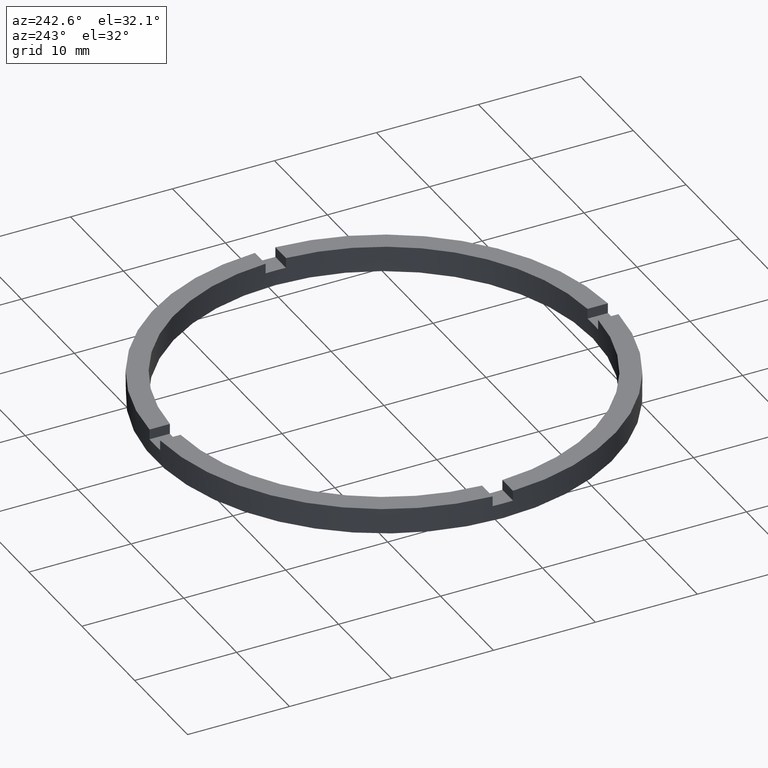
[diagram: clean part render]
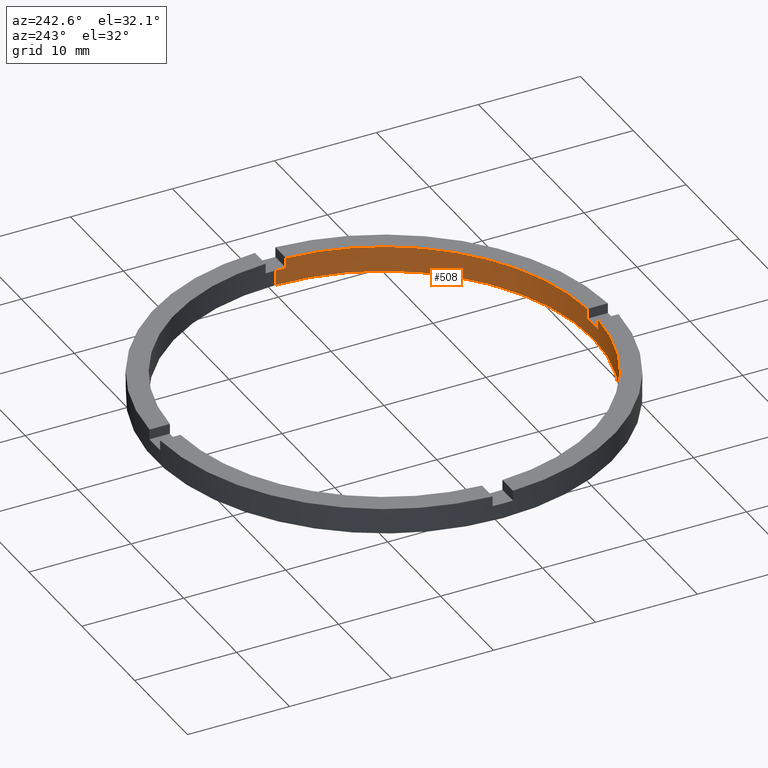
[diagram: same view with one face highlighted and labeled with its STEP entity id]
A machine part, auxiliary view. The second image highlights one B-rep face of the part: STEP entity #508.
In plain terms, the highlighted cylindrical surface (partial cylindrical patch) has radius 20.5 mm, axis along (-0, -0, -1).
Its self-contained STEP definition (entity closure, byte-faithful):
#14 = EDGE_CURVE ( 'NONE', #783, #241, #328, .T. ) ;
#17 = EDGE_LOOP ( 'NONE', ( #576, #514, #577, #518, #505, #561, #294, #511, #270, #752, #245, #510 ) ) ;
#18 = LINE ( 'NONE', #513, #306 ) ;
#25 = VERTEX_POINT ( 'NONE', #86 ) ;
#35 = EDGE_CURVE ( 'NONE', #532, #731, #609, .T. ) ;
#41 = CIRCLE ( 'NONE', #583, 20.50000000000000000 ) ;
#42 = DIRECTION ( 'NONE',  ( -0.000000000000000000, -0.000000000000000000, -1.000000000000000000 ) ) ;
#57 = DIRECTION ( 'NONE',  ( 0.000000000000000000, 0.000000000000000000, 1.000000000000000000 ) ) ;
#59 = CARTESIAN_POINT ( 'NONE',  ( -20.47559522944326815, -1.000000000000024869, 1.500000000000000000 ) ) ;
#82 = AXIS2_PLACEMENT_3D ( 'NONE', #129, #631, #180 ) ;
#86 = CARTESIAN_POINT ( 'NONE',  ( -20.47559522944326815, -1.000000000000024869, 2.500000000000000000 ) ) ;
#88 = CARTESIAN_POINT ( 'NONE',  ( 0.000000000000000000, 0.000000000000000000, 2.500000000000000000 ) ) ;
#89 = VECTOR ( 'NONE', #137, 1000.000000000000000 ) ;
#90 = EDGE_CURVE ( 'NONE', #502, #196, #594, .T. ) ;
#91 = LINE ( 'NONE', #685, #603 ) ;
#96 = VECTOR ( 'NONE', #526, 1000.000000000000000 ) ;
#100 = CIRCLE ( 'NONE', #118, 20.50000000000000000 ) ;
#118 = AXIS2_PLACEMENT_3D ( 'NONE', #173, #231, #714 ) ;
#129 = CARTESIAN_POINT ( 'NONE',  ( 0.000000000000000000, 0.000000000000000000, 1.500000000000000000 ) ) ;
#137 = DIRECTION ( 'NONE',  ( -0.000000000000000000, -0.000000000000000000, -1.000000000000000000 ) ) ;
#138 = EDGE_CURVE ( 'NONE', #542, #369, #91, .T. ) ;
#139 = CARTESIAN_POINT ( 'NONE',  ( -1.000000000000161204, -20.47559522944325749, 1.500000000000000000 ) ) ;
#155 = CARTESIAN_POINT ( 'NONE',  ( 20.50000000000000000, 2.510525938252074481E-15, 0.000000000000000000 ) ) ;
#158 = CARTESIAN_POINT ( 'NONE',  ( -1.000000000000161204, -20.47559522944325749, 2.500000000000000000 ) ) ;
#173 = CARTESIAN_POINT ( 'NONE',  ( 0.000000000000000000, 0.000000000000000000, 1.500000000000000000 ) ) ;
#180 = DIRECTION ( 'NONE',  ( 1.000000000000000000, 0.000000000000000000, 0.000000000000000000 ) ) ;
#186 = DIRECTION ( 'NONE',  ( -0.000000000000000000, -0.000000000000000000, -1.000000000000000000 ) ) ;
#189 = CARTESIAN_POINT ( 'NONE',  ( -20.50000000000000000, 0.000000000000000000, 2.500000000000000000 ) ) ;
#190 = CARTESIAN_POINT ( 'NONE',  ( 0.000000000000000000, 0.000000000000000000, 0.000000000000000000 ) ) ;
#192 = CARTESIAN_POINT ( 'NONE',  ( 0.000000000000000000, 0.000000000000000000, 2.500000000000000000 ) ) ;
#196 = VERTEX_POINT ( 'NONE', #59 ) ;
#213 = AXIS2_PLACEMENT_3D ( 'NONE', #665, #718, #759 ) ;
#231 = DIRECTION ( 'NONE',  ( 0.000000000000000000, 0.000000000000000000, 1.000000000000000000 ) ) ;
#234 = DIRECTION ( 'NONE',  ( 1.000000000000000000, 0.000000000000000000, 0.000000000000000000 ) ) ;
#239 = DIRECTION ( 'NONE',  ( 0.000000000000000000, 0.000000000000000000, 1.000000000000000000 ) ) ;
#241 = VERTEX_POINT ( 'NONE', #353 ) ;
#243 = VERTEX_POINT ( 'NONE', #550 ) ;
#245 = ORIENTED_EDGE ( 'NONE', *, *, #14, .T. ) ;
#247 = EDGE_CURVE ( 'NONE', #502, #532, #618, .T. ) ;
#270 = ORIENTED_EDGE ( 'NONE', *, *, #456, .T. ) ;
#291 = FACE_OUTER_BOUND ( 'NONE', #17, .T. ) ;
#294 = ORIENTED_EDGE ( 'NONE', *, *, #504, .T. ) ;
#306 = VECTOR ( 'NONE', #57, 1000.000000000000000 ) ;
#318 = DIRECTION ( 'NONE',  ( 1.000000000000000000, 0.000000000000000000, 0.000000000000000000 ) ) ;
#320 = AXIS2_PLACEMENT_3D ( 'NONE', #88, #186, #676 ) ;
#328 = CIRCLE ( 'NONE', #498, 20.50000000000000000 ) ;
#353 = CARTESIAN_POINT ( 'NONE',  ( 20.47559522944326460, -1.000000000000158096, 2.500000000000000000 ) ) ;
#369 = VERTEX_POINT ( 'NONE', #158 ) ;
#419 = CARTESIAN_POINT ( 'NONE',  ( 0.000000000000000000, 0.000000000000000000, 2.500000000000000000 ) ) ;
#428 = DIRECTION ( 'NONE',  ( 0.000000000000000000, 0.000000000000000000, 1.000000000000000000 ) ) ;
#432 = EDGE_CURVE ( 'NONE', #636, #731, #627, .T. ) ;
#447 = EDGE_CURVE ( 'NONE', #243, #636, #100, .T. ) ;
#456 = EDGE_CURVE ( 'NONE', #542, #782, #628, .T. ) ;
#459 = CARTESIAN_POINT ( 'NONE',  ( -20.47559522944326815, -1.000000000000024869, 2.500000000000000000 ) ) ;
#483 = DIRECTION ( 'NONE',  ( 0.000000000000000000, 0.000000000000000000, 1.000000000000000000 ) ) ;
#494 = DIRECTION ( 'NONE',  ( 1.000000000000000000, 0.000000000000000000, 0.000000000000000000 ) ) ;
#498 = AXIS2_PLACEMENT_3D ( 'NONE', #419, #483, #234 ) ;
#502 = VERTEX_POINT ( 'NONE', #767 ) ;
#504 = EDGE_CURVE ( 'NONE', #25, #369, #41, .T. ) ;
#505 = ORIENTED_EDGE ( 'NONE', *, *, #90, .T. ) ;
#506 = EDGE_CURVE ( 'NONE', #783, #782, #579, .T. ) ;
#508 = ADVANCED_FACE ( 'NONE', ( #291 ), #575, .F. ) ;
#510 = ORIENTED_EDGE ( 'NONE', *, *, #684, .F. ) ;
#511 = ORIENTED_EDGE ( 'NONE', *, *, #138, .F. ) ;
#513 = CARTESIAN_POINT ( 'NONE',  ( 20.47559522944326460, -1.000000000000158096, 2.500000000000000000 ) ) ;
#514 = ORIENTED_EDGE ( 'NONE', *, *, #432, .T. ) ;
#518 = ORIENTED_EDGE ( 'NONE', *, *, #247, .F. ) ;
#526 = DIRECTION ( 'NONE',  ( -0.000000000000000000, -0.000000000000000000, -1.000000000000000000 ) ) ;
#532 = VERTEX_POINT ( 'NONE', #637 ) ;
#542 = VERTEX_POINT ( 'NONE', #139 ) ;
#545 = VECTOR ( 'NONE', #42, 1000.000000000000000 ) ;
#550 = CARTESIAN_POINT ( 'NONE',  ( 20.47559522944326460, -1.000000000000158096, 1.500000000000000000 ) ) ;
#558 = LINE ( 'NONE', #459, #545 ) ;
#561 = ORIENTED_EDGE ( 'NONE', *, *, #728, .F. ) ;
#570 = VECTOR ( 'NONE', #681, 1000.000000000000000 ) ;
#572 = DIRECTION ( 'NONE',  ( 0.000000000000000000, 0.000000000000000000, 1.000000000000000000 ) ) ;
#575 = CYLINDRICAL_SURFACE ( 'NONE', #320, 20.50000000000000000 ) ;
#576 = ORIENTED_EDGE ( 'NONE', *, *, #447, .T. ) ;
#577 = ORIENTED_EDGE ( 'NONE', *, *, #35, .F. ) ;
#579 = LINE ( 'NONE', #647, #570 ) ;
#583 = AXIS2_PLACEMENT_3D ( 'NONE', #192, #428, #494 ) ;
#594 = CIRCLE ( 'NONE', #213, 20.50000000000000000 ) ;
#603 = VECTOR ( 'NONE', #572, 1000.000000000000000 ) ;
#609 = CIRCLE ( 'NONE', #683, 20.50000000000000000 ) ;
#618 = LINE ( 'NONE', #189, #89 ) ;
#627 = LINE ( 'NONE', #669, #96 ) ;
#628 = CIRCLE ( 'NONE', #82, 20.50000000000000000 ) ;
#631 = DIRECTION ( 'NONE',  ( -0.000000000000000000, 0.000000000000000000, 1.000000000000000000 ) ) ;
#636 = VERTEX_POINT ( 'NONE', #762 ) ;
#637 = CARTESIAN_POINT ( 'NONE',  ( -20.50000000000000000, 0.000000000000000000, 0.000000000000000000 ) ) ;
#647 = CARTESIAN_POINT ( 'NONE',  ( 0.9999999999998384625, -20.47559522944327881, 2.500000000000000000 ) ) ;
#665 = CARTESIAN_POINT ( 'NONE',  ( 0.000000000000000000, 0.000000000000000000, 1.500000000000000000 ) ) ;
#669 = CARTESIAN_POINT ( 'NONE',  ( 20.50000000000000000, 2.510525938252074481E-15, 2.500000000000000000 ) ) ;
#676 = DIRECTION ( 'NONE',  ( -1.000000000000000000, 0.000000000000000000, 0.000000000000000000 ) ) ;
#681 = DIRECTION ( 'NONE',  ( -0.000000000000000000, -0.000000000000000000, -1.000000000000000000 ) ) ;
#683 = AXIS2_PLACEMENT_3D ( 'NONE', #190, #239, #318 ) ;
#684 = EDGE_CURVE ( 'NONE', #243, #241, #18, .T. ) ;
#685 = CARTESIAN_POINT ( 'NONE',  ( -1.000000000000161648, -20.47559522944326105, 2.500000000000000000 ) ) ;
#711 = CARTESIAN_POINT ( 'NONE',  ( 0.9999999999998380185, -20.47559522944327526, 2.500000000000000000 ) ) ;
#714 = DIRECTION ( 'NONE',  ( 1.000000000000000000, 0.000000000000000000, 0.000000000000000000 ) ) ;
#718 = DIRECTION ( 'NONE',  ( 0.000000000000000000, 0.000000000000000000, 1.000000000000000000 ) ) ;
#728 = EDGE_CURVE ( 'NONE', #25, #196, #558, .T. ) ;
#731 = VERTEX_POINT ( 'NONE', #155 ) ;
#752 = ORIENTED_EDGE ( 'NONE', *, *, #506, .F. ) ;
#756 = CARTESIAN_POINT ( 'NONE',  ( 0.9999999999998380185, -20.47559522944327526, 1.500000000000000000 ) ) ;
#759 = DIRECTION ( 'NONE',  ( 1.000000000000000000, 0.000000000000000000, 0.000000000000000000 ) ) ;
#762 = CARTESIAN_POINT ( 'NONE',  ( 20.50000000000000000, 2.510525938252074481E-15, 1.500000000000000000 ) ) ;
#767 = CARTESIAN_POINT ( 'NONE',  ( -20.50000000000000000, 0.000000000000000000, 1.500000000000000000 ) ) ;
#782 = VERTEX_POINT ( 'NONE', #756 ) ;
#783 = VERTEX_POINT ( 'NONE', #711 ) ;